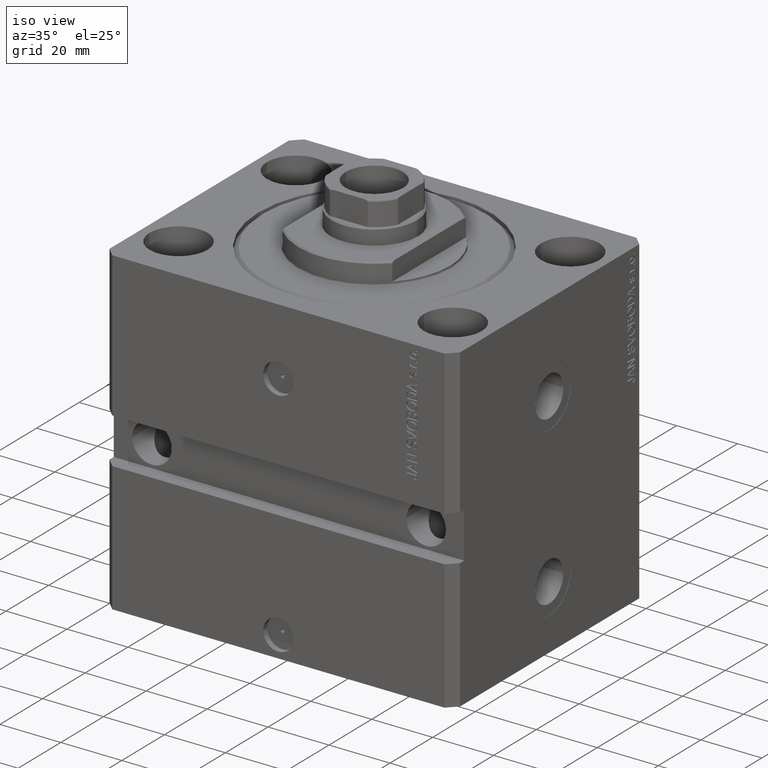
[diagram: clean part render]
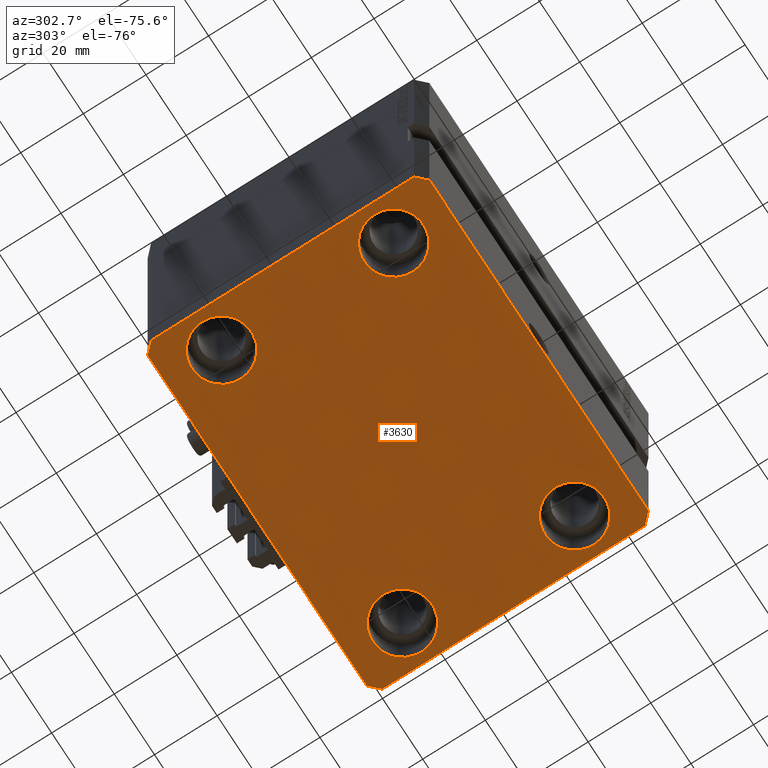
[diagram: tour spotlight — one face highlighted and labeled with its STEP entity id]
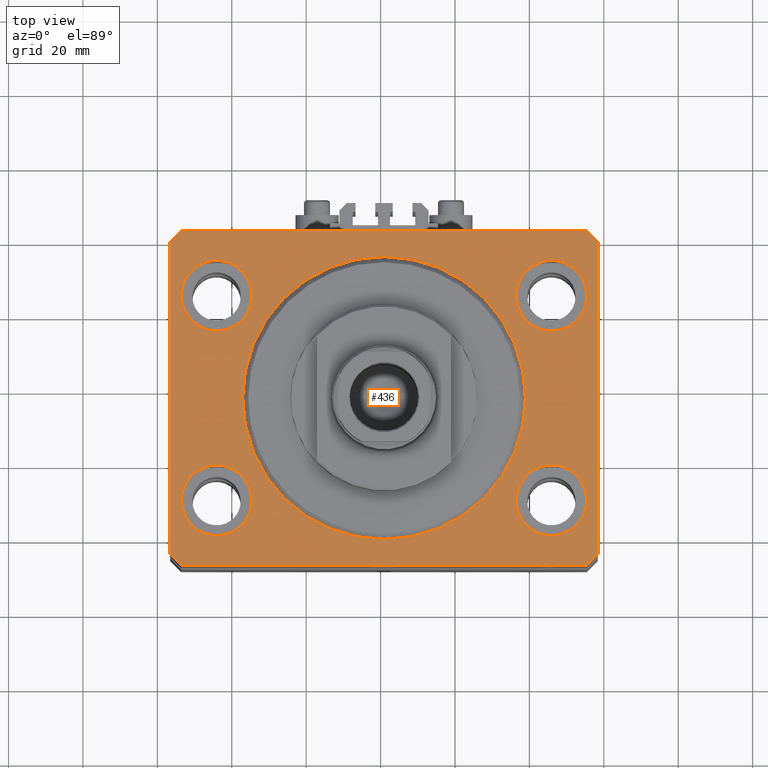
[diagram: tour spotlight — one face highlighted and labeled with its STEP entity id]
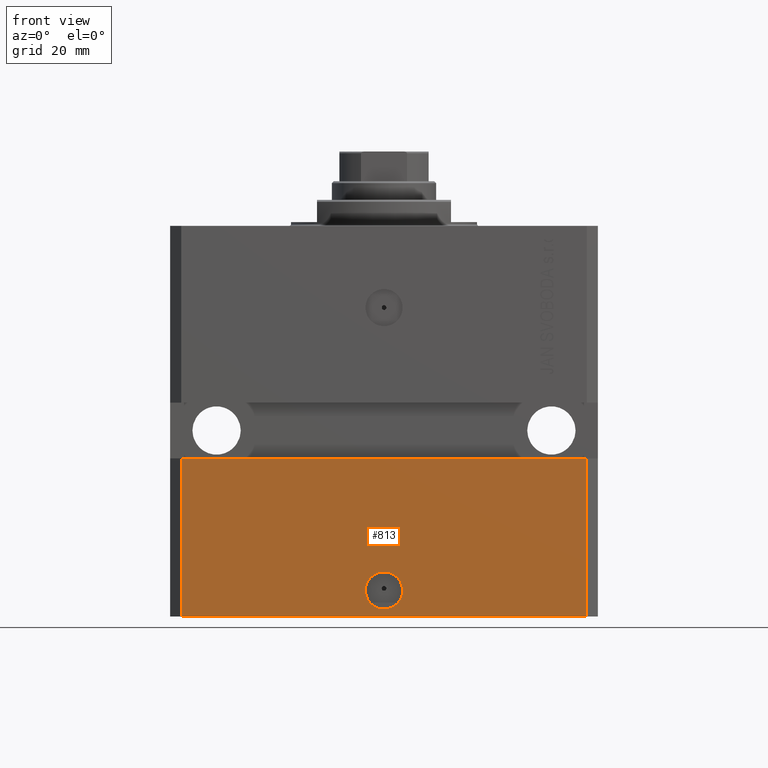
[diagram: tour spotlight — one face highlighted and labeled with its STEP entity id]
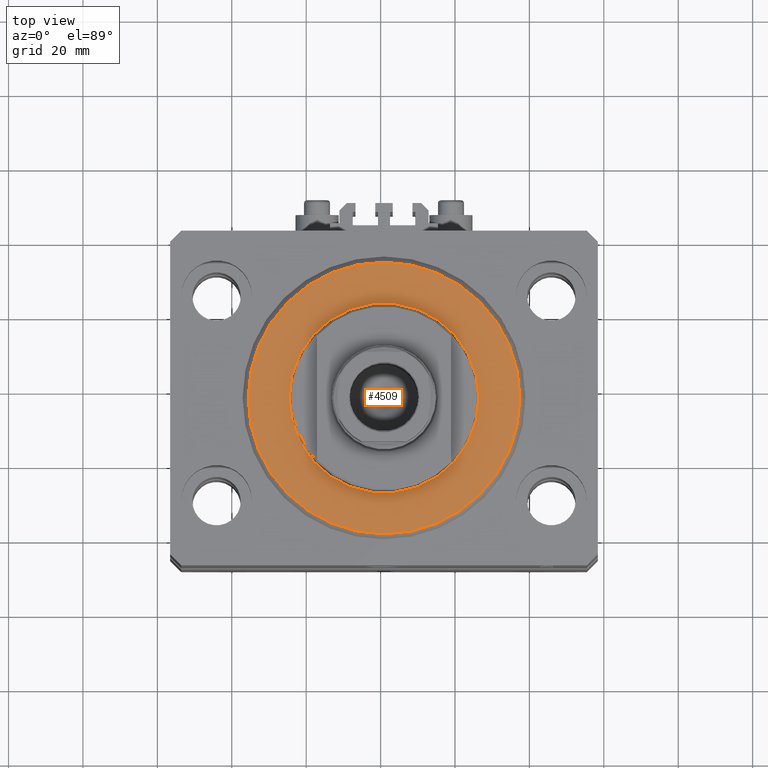
[diagram: tour spotlight — one face highlighted and labeled with its STEP entity id]
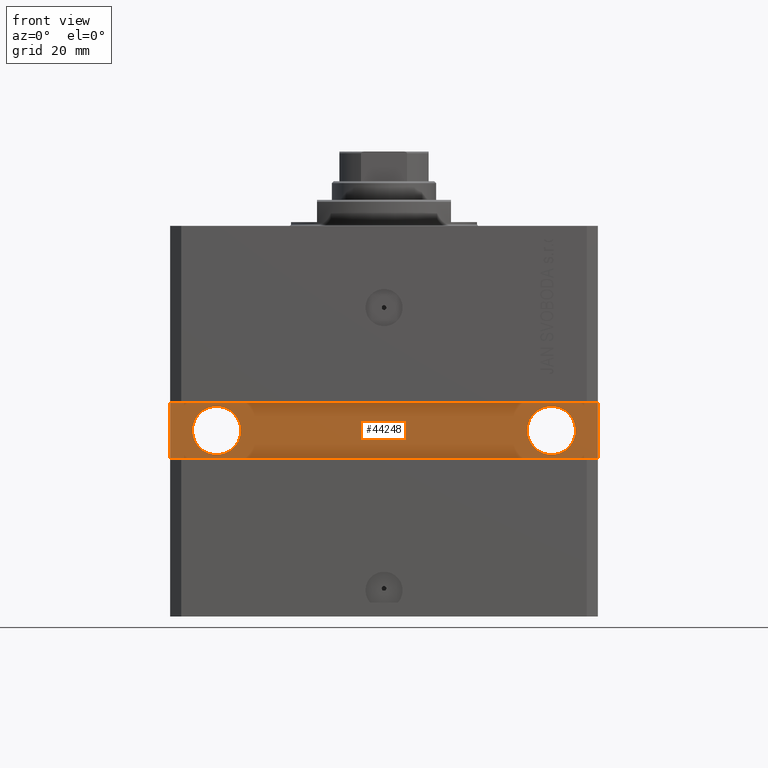
[diagram: tour spotlight — one face highlighted and labeled with its STEP entity id]
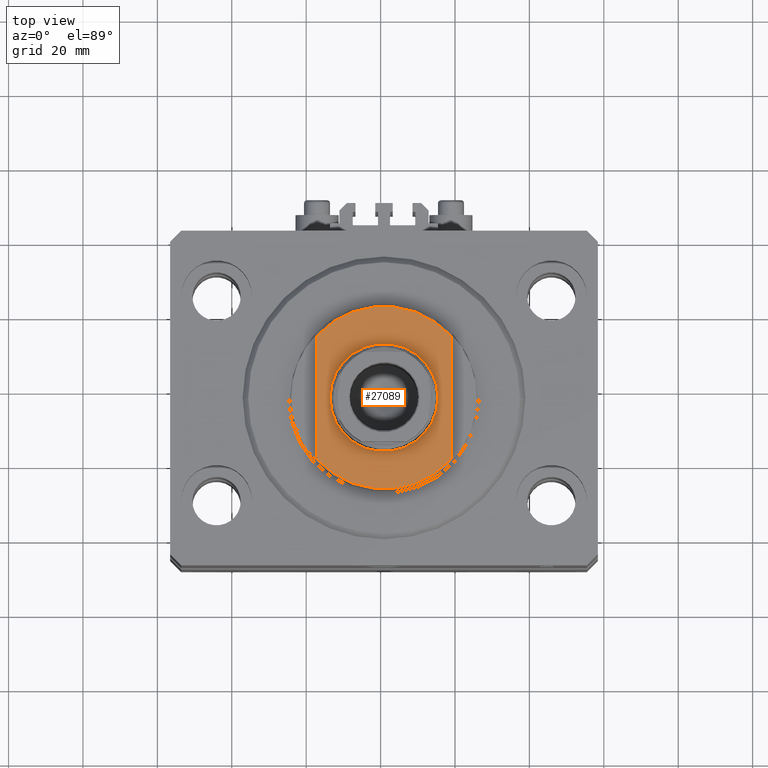
[diagram: tour spotlight — one face highlighted and labeled with its STEP entity id]
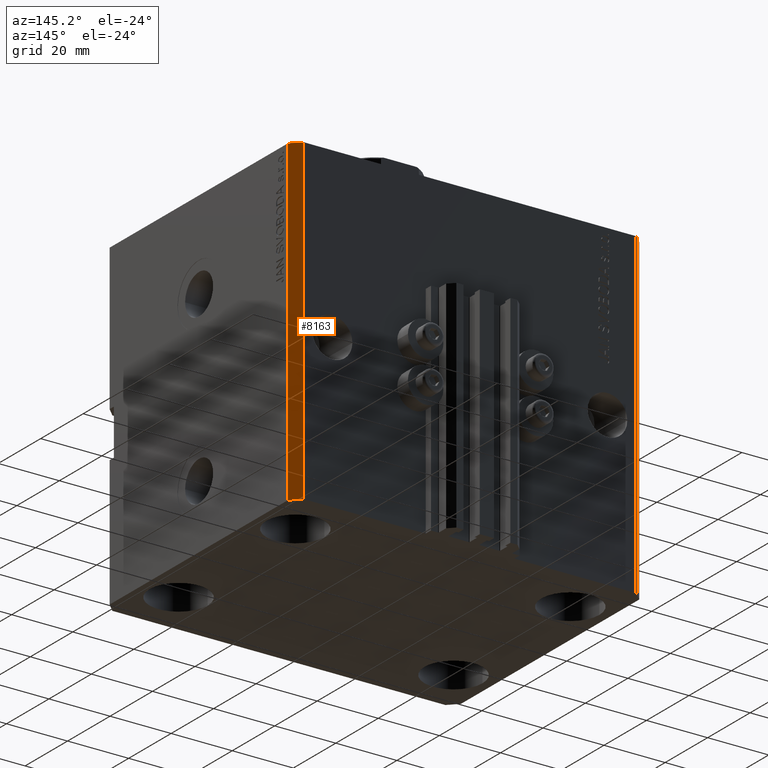
[diagram: tour spotlight — one face highlighted and labeled with its STEP entity id]
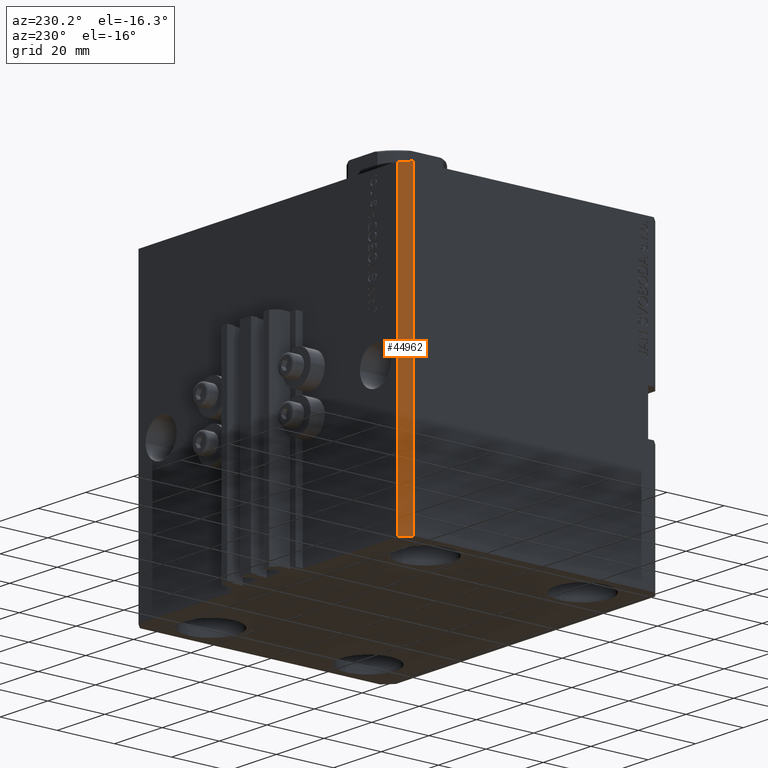
[diagram: tour spotlight — one face highlighted and labeled with its STEP entity id]
A machine part: a face-by-face anatomy tour. The part has 1107 B-rep faces; the first image is the clean iso view, then the 8 largest visible faces are spotlighted one at a time (largest first), each with its STEP entity span.

Face 1 — auxiliary view, entity #3630. In plain terms, the highlighted planar face has unit normal (0, 0, 1).
Definition (entity closure, byte-faithful):
#112 = DIRECTION ( 'NONE',  ( 6.443258625056715108E-15, 1.000000000000000000, 0.000000000000000000 ) ) ;
#125 = EDGE_CURVE ( 'NONE', #20394, #6511, #29089, .T. ) ;
#264 = CARTESIAN_POINT ( 'NONE',  ( 35.50000000000000000, -27.49999999999999645, -105.0000000000000000 ) ) ;
#377 = VERTEX_POINT ( 'NONE', #264 ) ;
#477 = VERTEX_POINT ( 'NONE', #28925 ) ;
#1305 = EDGE_CURVE ( 'NONE', #6511, #477, #19843, .T. ) ;
#3312 = LINE ( 'NONE', #3789, #21356 ) ;
#3402 = CARTESIAN_POINT ( 'NONE',  ( 57.50000000000055422, 41.99999999999997868, -105.0000000000000000 ) ) ;
#3582 = ORIENTED_EDGE ( 'NONE', *, *, #16244, .F. ) ;
#3630 = ADVANCED_FACE ( 'NONE', ( #8901, #38233, #11904, #34292, #19285 ), #31576, .F. ) ;
#3789 = CARTESIAN_POINT ( 'NONE',  ( 57.50000000000000711, -41.99999999999998579, -105.0000000000000000 ) ) ;
#4435 = AXIS2_PLACEMENT_3D ( 'NONE', #23701, #27870, #46571 ) ;
#4565 = EDGE_CURVE ( 'NONE', #40309, #38960, #5466, .T. ) ;
#4641 = ORIENTED_EDGE ( 'NONE', *, *, #9061, .T. ) ;
#4927 = DIRECTION ( 'NONE',  ( 1.000000000000000000, 0.000000000000000000, 0.000000000000000000 ) ) ;
#5466 = LINE ( 'NONE', #34777, #26491 ) ;
#5752 = DIRECTION ( 'NONE',  ( 1.000000000000000000, 1.273191542001326317E-16, 0.000000000000000000 ) ) ;
#6219 = VERTEX_POINT ( 'NONE', #42129 ) ;
#6511 = VERTEX_POINT ( 'NONE', #45877 ) ;
#6533 = ORIENTED_EDGE ( 'NONE', *, *, #19991, .T. ) ;
#6964 = VERTEX_POINT ( 'NONE', #22649 ) ;
#7187 = EDGE_CURVE ( 'NONE', #13862, #40309, #9052, .T. ) ;
#7370 = ORIENTED_EDGE ( 'NONE', *, *, #1305, .F. ) ;
#7487 = CARTESIAN_POINT ( 'NONE',  ( -54.49999999999999289, 45.00000000000000000, -105.0000000000000000 ) ) ;
#7887 = VECTOR ( 'NONE', #32775, 1000.000000000000000 ) ;
#8721 = CARTESIAN_POINT ( 'NONE',  ( -57.49999999999998579, 42.00000000000000711, -105.0000000000000000 ) ) ;
#8728 = CARTESIAN_POINT ( 'NONE',  ( 54.50000000000000711, -44.99999999999998579, -105.0000000000000000 ) ) ;
#8745 = DIRECTION ( 'NONE',  ( 0.7071067811865491270, -0.7071067811865459074, 0.000000000000000000 ) ) ;
#8901 = FACE_BOUND ( 'NONE', #27006, .T. ) ;
#9052 = LINE ( 'NONE', #20150, #26450 ) ;
#9054 = VERTEX_POINT ( 'NONE', #18397 ) ;
#9061 = EDGE_CURVE ( 'NONE', #9054, #40229, #27283, .T. ) ;
#9935 = CIRCLE ( 'NONE', #13096, 9.500000000000001776 ) ;
#9993 = ORIENTED_EDGE ( 'NONE', *, *, #22297, .T. ) ;
#10022 = CARTESIAN_POINT ( 'NONE',  ( -45.00000000000000000, 27.50000000000000355, -105.0000000000000000 ) ) ;
#10584 = EDGE_CURVE ( 'NONE', #38960, #20394, #26219, .T. ) ;
#10914 = DIRECTION ( 'NONE',  ( -0.000000000000000000, -0.000000000000000000, 1.000000000000000000 ) ) ;
#11194 = DIRECTION ( 'NONE',  ( -0.000000000000000000, -0.000000000000000000, 1.000000000000000000 ) ) ;
#11904 = FACE_BOUND ( 'NONE', #15045, .T. ) ;
#12507 = ORIENTED_EDGE ( 'NONE', *, *, #32824, .T. ) ;
#12941 = CARTESIAN_POINT ( 'NONE',  ( 45.00000000000000000, 27.50000000000001776, -105.0000000000000000 ) ) ;
#13096 = AXIS2_PLACEMENT_3D ( 'NONE', #19733, #16752, #4927 ) ;
#13113 = CARTESIAN_POINT ( 'NONE',  ( 45.00000000000000000, -27.49999999999999645, -105.0000000000000000 ) ) ;
#13542 = DIRECTION ( 'NONE',  ( -0.000000000000000000, -0.000000000000000000, 1.000000000000000000 ) ) ;
#13583 = CARTESIAN_POINT ( 'NONE',  ( -57.49999999999998579, 42.00000000000000711, -105.0000000000000000 ) ) ;
#13764 = ORIENTED_EDGE ( 'NONE', *, *, #10584, .F. ) ;
#13862 = VERTEX_POINT ( 'NONE', #3402 ) ;
#13943 = AXIS2_PLACEMENT_3D ( 'NONE', #10022, #25053, #36370 ) ;
#14221 = ORIENTED_EDGE ( 'NONE', *, *, #29487, .T. ) ;
#14630 = EDGE_CURVE ( 'NONE', #29879, #32594, #36915, .T. ) ;
#14688 = AXIS2_PLACEMENT_3D ( 'NONE', #25839, #13542, #40125 ) ;
#15045 = EDGE_LOOP ( 'NONE', ( #12507, #27717 ) ) ;
#15523 = CARTESIAN_POINT ( 'NONE',  ( 54.50000000000000000, 27.50000000000001776, -105.0000000000000000 ) ) ;
#16244 = EDGE_CURVE ( 'NONE', #43432, #6219, #30060, .T. ) ;
#16705 = DIRECTION ( 'NONE',  ( -0.7071067811865376918, 0.7071067811865574537, 0.000000000000000000 ) ) ;
#16752 = DIRECTION ( 'NONE',  ( -0.000000000000000000, -0.000000000000000000, 1.000000000000000000 ) ) ;
#16830 = VECTOR ( 'NONE', #5752, 1000.000000000000000 ) ;
#17192 = ORIENTED_EDGE ( 'NONE', *, *, #24057, .F. ) ;
#18129 = AXIS2_PLACEMENT_3D ( 'NONE', #18834, #11194, #18584 ) ;
#18397 = CARTESIAN_POINT ( 'NONE',  ( -54.50000000000000000, 27.50000000000000355, -105.0000000000000000 ) ) ;
#18584 = DIRECTION ( 'NONE',  ( 1.000000000000000000, 0.000000000000000000, 0.000000000000000000 ) ) ;
#18834 = CARTESIAN_POINT ( 'NONE',  ( 45.00000000000000000, -27.49999999999999645, -105.0000000000000000 ) ) ;
#19136 = EDGE_CURVE ( 'NONE', #6219, #13862, #3312, .T. ) ;
#19285 = FACE_OUTER_BOUND ( 'NONE', #45483, .T. ) ;
#19727 = CARTESIAN_POINT ( 'NONE',  ( -45.00000000000000000, -27.49999999999999645, -105.0000000000000000 ) ) ;
#19733 = CARTESIAN_POINT ( 'NONE',  ( 45.00000000000000000, 27.50000000000001776, -105.0000000000000000 ) ) ;
#19843 = LINE ( 'NONE', #27946, #24017 ) ;
#19913 = ORIENTED_EDGE ( 'NONE', *, *, #7187, .F. ) ;
#19991 = EDGE_CURVE ( 'NONE', #33998, #377, #39328, .T. ) ;
#20043 = LINE ( 'NONE', #31133, #16830 ) ;
#20150 = CARTESIAN_POINT ( 'NONE',  ( 57.50000000000055422, 41.99999999999997868, -105.0000000000000000 ) ) ;
#20394 = VERTEX_POINT ( 'NONE', #8721 ) ;
#20703 = CIRCLE ( 'NONE', #48232, 9.500000000000001776 ) ;
#21356 = VECTOR ( 'NONE', #112, 1000.000000000000000 ) ;
#21766 = CARTESIAN_POINT ( 'NONE',  ( -35.50000000000000000, -27.49999999999999645, -105.0000000000000000 ) ) ;
#22297 = EDGE_CURVE ( 'NONE', #42327, #6964, #20703, .T. ) ;
#22422 = CIRCLE ( 'NONE', #35758, 9.500000000000001776 ) ;
#22519 = DIRECTION ( 'NONE',  ( -0.7071067811865483499, -0.7071067811865466846, 0.000000000000000000 ) ) ;
#22649 = CARTESIAN_POINT ( 'NONE',  ( -54.50000000000000000, -27.49999999999999645, -105.0000000000000000 ) ) ;
#23131 = EDGE_LOOP ( 'NONE', ( #30900, #6533 ) ) ;
#23701 = CARTESIAN_POINT ( 'NONE',  ( 0.000000000000000000, 0.000000000000000000, -105.0000000000000000 ) ) ;
#24017 = VECTOR ( 'NONE', #8745, 1000.000000000000114 ) ;
#24057 = EDGE_CURVE ( 'NONE', #477, #43432, #20043, .T. ) ;
#24931 = DIRECTION ( 'NONE',  ( 1.000000000000000000, 0.000000000000000000, 0.000000000000000000 ) ) ;
#24963 = CARTESIAN_POINT ( 'NONE',  ( -45.00000000000000000, -27.49999999999999645, -105.0000000000000000 ) ) ;
#25053 = DIRECTION ( 'NONE',  ( -0.000000000000000000, -0.000000000000000000, 1.000000000000000000 ) ) ;
#25293 = EDGE_CURVE ( 'NONE', #377, #33998, #41923, .T. ) ;
#25839 = CARTESIAN_POINT ( 'NONE',  ( -45.00000000000000000, 27.50000000000000355, -105.0000000000000000 ) ) ;
#26219 = LINE ( 'NONE', #7487, #46961 ) ;
#26450 = VECTOR ( 'NONE', #16705, 999.9999999999998863 ) ;
#26491 = VECTOR ( 'NONE', #38241, 1000.000000000000000 ) ;
#27006 = EDGE_LOOP ( 'NONE', ( #14221, #9993 ) ) ;
#27283 = CIRCLE ( 'NONE', #13943, 9.500000000000001776 ) ;
#27717 = ORIENTED_EDGE ( 'NONE', *, *, #14630, .T. ) ;
#27736 = ORIENTED_EDGE ( 'NONE', *, *, #125, .F. ) ;
#27870 = DIRECTION ( 'NONE',  ( 0.000000000000000000, 0.000000000000000000, 1.000000000000000000 ) ) ;
#27946 = CARTESIAN_POINT ( 'NONE',  ( -57.50000000000000711, -42.00000000000000711, -105.0000000000000000 ) ) ;
#27955 = DIRECTION ( 'NONE',  ( -0.000000000000000000, -0.000000000000000000, 1.000000000000000000 ) ) ;
#28627 = DIRECTION ( 'NONE',  ( -0.000000000000000000, -0.000000000000000000, 1.000000000000000000 ) ) ;
#28925 = CARTESIAN_POINT ( 'NONE',  ( -54.50000000000000711, -45.00000000000000000, -105.0000000000000000 ) ) ;
#29089 = LINE ( 'NONE', #13583, #39697 ) ;
#29487 = EDGE_CURVE ( 'NONE', #6964, #42327, #22422, .T. ) ;
#29815 = CARTESIAN_POINT ( 'NONE',  ( 54.50000000000000711, -44.99999999999998579, -105.0000000000000000 ) ) ;
#29832 = AXIS2_PLACEMENT_3D ( 'NONE', #12941, #27955, #42969 ) ;
#29879 = VERTEX_POINT ( 'NONE', #15523 ) ;
#30060 = LINE ( 'NONE', #29815, #7887 ) ;
#30900 = ORIENTED_EDGE ( 'NONE', *, *, #25293, .T. ) ;
#30978 = CARTESIAN_POINT ( 'NONE',  ( -54.49999999999999289, 45.00000000000000000, -105.0000000000000000 ) ) ;
#31133 = CARTESIAN_POINT ( 'NONE',  ( -54.50000000000000711, -45.00000000000000000, -105.0000000000000000 ) ) ;
#31155 = CARTESIAN_POINT ( 'NONE',  ( 54.50000000000000000, -27.49999999999999645, -105.0000000000000000 ) ) ;
#31576 = PLANE ( 'NONE',  #4435 ) ;
#32307 = DIRECTION ( 'NONE',  ( -2.478176394252581141E-16, -1.000000000000000000, 0.000000000000000000 ) ) ;
#32375 = ORIENTED_EDGE ( 'NONE', *, *, #4565, .F. ) ;
#32594 = VERTEX_POINT ( 'NONE', #40203 ) ;
#32775 = DIRECTION ( 'NONE',  ( 0.7071067811865483499, 0.7071067811865466846, 0.000000000000000000 ) ) ;
#32824 = EDGE_CURVE ( 'NONE', #32594, #29879, #9935, .T. ) ;
#32966 = EDGE_LOOP ( 'NONE', ( #4641, #47920 ) ) ;
#33487 = EDGE_CURVE ( 'NONE', #40229, #9054, #35118, .T. ) ;
#33998 = VERTEX_POINT ( 'NONE', #31155 ) ;
#34292 = FACE_BOUND ( 'NONE', #32966, .T. ) ;
#34377 = CARTESIAN_POINT ( 'NONE',  ( -35.50000000000000000, 27.50000000000000355, -105.0000000000000000 ) ) ;
#34777 = CARTESIAN_POINT ( 'NONE',  ( 54.50000000000058975, 45.00000000000002842, -105.0000000000000000 ) ) ;
#35118 = CIRCLE ( 'NONE', #14688, 9.500000000000001776 ) ;
#35758 = AXIS2_PLACEMENT_3D ( 'NONE', #24963, #10914, #36525 ) ;
#36370 = DIRECTION ( 'NONE',  ( 1.000000000000000000, 0.000000000000000000, 0.000000000000000000 ) ) ;
#36525 = DIRECTION ( 'NONE',  ( 1.000000000000000000, 0.000000000000000000, 0.000000000000000000 ) ) ;
#36915 = CIRCLE ( 'NONE', #29832, 9.500000000000001776 ) ;
#38233 = FACE_BOUND ( 'NONE', #23131, .T. ) ;
#38241 = DIRECTION ( 'NONE',  ( -1.000000000000000000, -2.546383084002639322E-16, 0.000000000000000000 ) ) ;
#38432 = DIRECTION ( 'NONE',  ( 1.000000000000000000, 0.000000000000000000, 0.000000000000000000 ) ) ;
#38780 = AXIS2_PLACEMENT_3D ( 'NONE', #13113, #28627, #24931 ) ;
#38960 = VERTEX_POINT ( 'NONE', #30978 ) ;
#39328 = CIRCLE ( 'NONE', #18129, 9.500000000000001776 ) ;
#39697 = VECTOR ( 'NONE', #32307, 1000.000000000000000 ) ;
#40125 = DIRECTION ( 'NONE',  ( 1.000000000000000000, 0.000000000000000000, 0.000000000000000000 ) ) ;
#40203 = CARTESIAN_POINT ( 'NONE',  ( 35.50000000000000000, 27.50000000000001776, -105.0000000000000000 ) ) ;
#40229 = VERTEX_POINT ( 'NONE', #34377 ) ;
#40309 = VERTEX_POINT ( 'NONE', #46415 ) ;
#41158 = DIRECTION ( 'NONE',  ( -0.000000000000000000, -0.000000000000000000, 1.000000000000000000 ) ) ;
#41923 = CIRCLE ( 'NONE', #38780, 9.500000000000001776 ) ;
#42046 = ORIENTED_EDGE ( 'NONE', *, *, #19136, .F. ) ;
#42129 = CARTESIAN_POINT ( 'NONE',  ( 57.50000000000000711, -41.99999999999998579, -105.0000000000000000 ) ) ;
#42327 = VERTEX_POINT ( 'NONE', #21766 ) ;
#42969 = DIRECTION ( 'NONE',  ( 1.000000000000000000, 0.000000000000000000, 0.000000000000000000 ) ) ;
#43432 = VERTEX_POINT ( 'NONE', #8728 ) ;
#45483 = EDGE_LOOP ( 'NONE', ( #32375, #19913, #42046, #3582, #17192, #7370, #27736, #13764 ) ) ;
#45877 = CARTESIAN_POINT ( 'NONE',  ( -57.50000000000000711, -42.00000000000000711, -105.0000000000000000 ) ) ;
#46415 = CARTESIAN_POINT ( 'NONE',  ( 54.50000000000058975, 45.00000000000002842, -105.0000000000000000 ) ) ;
#46571 = DIRECTION ( 'NONE',  ( 1.000000000000000000, 0.000000000000000000, -0.000000000000000000 ) ) ;
#46961 = VECTOR ( 'NONE', #22519, 1000.000000000000000 ) ;
#47920 = ORIENTED_EDGE ( 'NONE', *, *, #33487, .T. ) ;
#48232 = AXIS2_PLACEMENT_3D ( 'NONE', #19727, #41158, #38432 ) ;

Face 2 — top view, entity #436. In plain terms, the highlighted planar face has unit normal (0, 0, 1).
Definition (entity closure, byte-faithful):
#436 = ADVANCED_FACE ( 'NONE', ( #16908, #31926, #46934, #13215, #21060, #39264 ), #2083, .T. ) ;
#547 = AXIS2_PLACEMENT_3D ( 'NONE', #9775, #43759, #24801 ) ;
#1015 = DIRECTION ( 'NONE',  ( 0.000000000000000000, 0.000000000000000000, 1.000000000000000000 ) ) ;
#2036 = CARTESIAN_POINT ( 'NONE',  ( 45.00000000000000000, 27.50000000000001776, 0.000000000000000000 ) ) ;
#2056 = LINE ( 'NONE', #20283, #18493 ) ;
#2083 = PLANE ( 'NONE',  #7462 ) ;
#2191 = EDGE_CURVE ( 'NONE', #17989, #13454, #47640, .T. ) ;
#2441 = VERTEX_POINT ( 'NONE', #7311 ) ;
#2590 = AXIS2_PLACEMENT_3D ( 'NONE', #46104, #37586, #27166 ) ;
#3019 = DIRECTION ( 'NONE',  ( -0.7071067811865483499, -0.7071067811865466846, 0.000000000000000000 ) ) ;
#3336 = EDGE_CURVE ( 'NONE', #3861, #16963, #21624, .T. ) ;
#3755 = DIRECTION ( 'NONE',  ( 1.000000000000000000, 1.273191542001326317E-16, 0.000000000000000000 ) ) ;
#3861 = VERTEX_POINT ( 'NONE', #18021 ) ;
#4135 = CARTESIAN_POINT ( 'NONE',  ( -45.00000000000000000, 27.50000000000000355, 0.000000000000000000 ) ) ;
#5019 = CARTESIAN_POINT ( 'NONE',  ( -57.50000000000000711, -42.00000000000000711, 0.000000000000000000 ) ) ;
#5020 = DIRECTION ( 'NONE',  ( -2.478176394252581141E-16, -1.000000000000000000, 0.000000000000000000 ) ) ;
#5124 = ORIENTED_EDGE ( 'NONE', *, *, #6803, .F. ) ;
#5341 = CIRCLE ( 'NONE', #32898, 9.500000000000001776 ) ;
#6254 = DIRECTION ( 'NONE',  ( 1.000000000000000000, 0.000000000000000000, 0.000000000000000000 ) ) ;
#6385 = CARTESIAN_POINT ( 'NONE',  ( -57.49999999999998579, 42.00000000000000711, 0.000000000000000000 ) ) ;
#6563 = EDGE_CURVE ( 'NONE', #2441, #19921, #30358, .T. ) ;
#6621 = EDGE_CURVE ( 'NONE', #45071, #18399, #25675, .T. ) ;
#6803 = EDGE_CURVE ( 'NONE', #13499, #31987, #24868, .T. ) ;
#6884 = DIRECTION ( 'NONE',  ( 0.000000000000000000, 0.000000000000000000, 1.000000000000000000 ) ) ;
#7164 = CARTESIAN_POINT ( 'NONE',  ( 57.50000000000055422, 41.99999999999997868, 0.000000000000000000 ) ) ;
#7311 = CARTESIAN_POINT ( 'NONE',  ( 35.50000000000000000, 27.50000000000001776, 0.000000000000000000 ) ) ;
#7344 = DIRECTION ( 'NONE',  ( 1.000000000000000000, 0.000000000000000000, 0.000000000000000000 ) ) ;
#7462 = AXIS2_PLACEMENT_3D ( 'NONE', #13903, #35560, #9713 ) ;
#7640 = CARTESIAN_POINT ( 'NONE',  ( -38.00000000000000000, 4.653657836759941941E-15, 0.000000000000000000 ) ) ;
#7963 = CARTESIAN_POINT ( 'NONE',  ( 54.50000000000058975, 45.00000000000002842, 0.000000000000000000 ) ) ;
#8052 = ORIENTED_EDGE ( 'NONE', *, *, #29403, .T. ) ;
#8179 = CARTESIAN_POINT ( 'NONE',  ( -54.50000000000000711, -45.00000000000000000, 0.000000000000000000 ) ) ;
#8870 = EDGE_LOOP ( 'NONE', ( #28527, #12181 ) ) ;
#8937 = EDGE_CURVE ( 'NONE', #46738, #9719, #17884, .T. ) ;
#9095 = VECTOR ( 'NONE', #3019, 1000.000000000000000 ) ;
#9713 = DIRECTION ( 'NONE',  ( 1.000000000000000000, 0.000000000000000000, -0.000000000000000000 ) ) ;
#9719 = VERTEX_POINT ( 'NONE', #31226 ) ;
#9775 = CARTESIAN_POINT ( 'NONE',  ( -45.00000000000000000, -27.49999999999999645, 0.000000000000000000 ) ) ;
#10457 = CARTESIAN_POINT ( 'NONE',  ( 54.50000000000000000, 27.50000000000001776, 0.000000000000000000 ) ) ;
#11553 = AXIS2_PLACEMENT_3D ( 'NONE', #4135, #37637, #7344 ) ;
#11893 = DIRECTION ( 'NONE',  ( 0.000000000000000000, 0.000000000000000000, 1.000000000000000000 ) ) ;
#11906 = CARTESIAN_POINT ( 'NONE',  ( 35.50000000000000000, -27.49999999999999645, 0.000000000000000000 ) ) ;
#12033 = DIRECTION ( 'NONE',  ( 0.7071067811865483499, 0.7071067811865466846, 0.000000000000000000 ) ) ;
#12181 = ORIENTED_EDGE ( 'NONE', *, *, #33742, .F. ) ;
#12256 = ORIENTED_EDGE ( 'NONE', *, *, #2191, .F. ) ;
#12322 = VERTEX_POINT ( 'NONE', #12658 ) ;
#12553 = EDGE_CURVE ( 'NONE', #16963, #29981, #22474, .T. ) ;
#12587 = CARTESIAN_POINT ( 'NONE',  ( 0.000000000000000000, 0.000000000000000000, 0.000000000000000000 ) ) ;
#12624 = CIRCLE ( 'NONE', #36221, 9.500000000000001776 ) ;
#12658 = CARTESIAN_POINT ( 'NONE',  ( 57.50000000000055422, 41.99999999999997868, 0.000000000000000000 ) ) ;
#12662 = DIRECTION ( 'NONE',  ( 6.443258625056715108E-15, 1.000000000000000000, 0.000000000000000000 ) ) ;
#12789 = VERTEX_POINT ( 'NONE', #18253 ) ;
#13202 = EDGE_LOOP ( 'NONE', ( #23273, #12256 ) ) ;
#13215 = FACE_BOUND ( 'NONE', #8870, .T. ) ;
#13454 = VERTEX_POINT ( 'NONE', #28844 ) ;
#13499 = VERTEX_POINT ( 'NONE', #7640 ) ;
#13869 = AXIS2_PLACEMENT_3D ( 'NONE', #12587, #1015, #42852 ) ;
#13874 = VECTOR ( 'NONE', #20299, 1000.000000000000114 ) ;
#13903 = CARTESIAN_POINT ( 'NONE',  ( 0.000000000000000000, 0.000000000000000000, 0.000000000000000000 ) ) ;
#14269 = ORIENTED_EDGE ( 'NONE', *, *, #3336, .T. ) ;
#14557 = DIRECTION ( 'NONE',  ( 1.000000000000000000, 0.000000000000000000, 0.000000000000000000 ) ) ;
#15833 = DIRECTION ( 'NONE',  ( 1.000000000000000000, 0.000000000000000000, 0.000000000000000000 ) ) ;
#16082 = CARTESIAN_POINT ( 'NONE',  ( -35.50000000000000000, -27.49999999999999645, 0.000000000000000000 ) ) ;
#16199 = VERTEX_POINT ( 'NONE', #25879 ) ;
#16908 = FACE_BOUND ( 'NONE', #36403, .T. ) ;
#16932 = VECTOR ( 'NONE', #36970, 999.9999999999998863 ) ;
#16961 = EDGE_CURVE ( 'NONE', #19921, #2441, #12624, .T. ) ;
#16963 = VERTEX_POINT ( 'NONE', #8179 ) ;
#17040 = VECTOR ( 'NONE', #12033, 1000.000000000000000 ) ;
#17884 = CIRCLE ( 'NONE', #547, 9.500000000000001776 ) ;
#17981 = DIRECTION ( 'NONE',  ( 1.000000000000000000, 0.000000000000000000, 0.000000000000000000 ) ) ;
#17989 = VERTEX_POINT ( 'NONE', #11906 ) ;
#18021 = CARTESIAN_POINT ( 'NONE',  ( -57.50000000000000711, -42.00000000000000711, 0.000000000000000000 ) ) ;
#18253 = CARTESIAN_POINT ( 'NONE',  ( 54.50000000000058975, 45.00000000000002842, 0.000000000000000000 ) ) ;
#18399 = VERTEX_POINT ( 'NONE', #6385 ) ;
#18493 = VECTOR ( 'NONE', #12662, 1000.000000000000000 ) ;
#19921 = VERTEX_POINT ( 'NONE', #10457 ) ;
#20283 = CARTESIAN_POINT ( 'NONE',  ( 57.50000000000000711, -41.99999999999998579, 0.000000000000000000 ) ) ;
#20299 = DIRECTION ( 'NONE',  ( 0.7071067811865491270, -0.7071067811865459074, 0.000000000000000000 ) ) ;
#20547 = ORIENTED_EDGE ( 'NONE', *, *, #44888, .T. ) ;
#21060 = FACE_BOUND ( 'NONE', #38320, .T. ) ;
#21624 = LINE ( 'NONE', #5019, #13874 ) ;
#22474 = LINE ( 'NONE', #37492, #45493 ) ;
#23273 = ORIENTED_EDGE ( 'NONE', *, *, #37597, .F. ) ;
#23307 = ORIENTED_EDGE ( 'NONE', *, *, #25205, .F. ) ;
#23408 = CARTESIAN_POINT ( 'NONE',  ( -54.49999999999999289, 45.00000000000000000, 0.000000000000000000 ) ) ;
#23539 = AXIS2_PLACEMENT_3D ( 'NONE', #43452, #39999, #6254 ) ;
#23762 = LINE ( 'NONE', #38764, #40941 ) ;
#23822 = CIRCLE ( 'NONE', #2590, 38.00000000000000000 ) ;
#24801 = DIRECTION ( 'NONE',  ( 1.000000000000000000, 0.000000000000000000, 0.000000000000000000 ) ) ;
#24868 = CIRCLE ( 'NONE', #13869, 38.00000000000000000 ) ;
#24905 = CARTESIAN_POINT ( 'NONE',  ( -45.00000000000000000, -27.49999999999999645, 0.000000000000000000 ) ) ;
#25205 = EDGE_CURVE ( 'NONE', #31987, #13499, #23822, .T. ) ;
#25675 = LINE ( 'NONE', #47587, #9095 ) ;
#25879 = CARTESIAN_POINT ( 'NONE',  ( -54.50000000000000000, 27.50000000000000355, 0.000000000000000000 ) ) ;
#25900 = CIRCLE ( 'NONE', #23539, 9.500000000000001776 ) ;
#27166 = DIRECTION ( 'NONE',  ( 1.000000000000000000, 0.000000000000000000, 0.000000000000000000 ) ) ;
#27272 = EDGE_LOOP ( 'NONE', ( #46744, #41488, #20547, #14269, #46265, #42263, #8052, #36886 ) ) ;
#27468 = ORIENTED_EDGE ( 'NONE', *, *, #16961, .F. ) ;
#28171 = CIRCLE ( 'NONE', #32154, 9.500000000000001776 ) ;
#28527 = ORIENTED_EDGE ( 'NONE', *, *, #43572, .F. ) ;
#28844 = CARTESIAN_POINT ( 'NONE',  ( 54.50000000000000000, -27.49999999999999645, 0.000000000000000000 ) ) ;
#29342 = LINE ( 'NONE', #7164, #16932 ) ;
#29403 = EDGE_CURVE ( 'NONE', #41244, #12322, #2056, .T. ) ;
#29981 = VERTEX_POINT ( 'NONE', #42576 ) ;
#30358 = CIRCLE ( 'NONE', #35072, 9.500000000000001776 ) ;
#30362 = AXIS2_PLACEMENT_3D ( 'NONE', #40621, #6884, #17981 ) ;
#30896 = EDGE_CURVE ( 'NONE', #12322, #12789, #29342, .T. ) ;
#31226 = CARTESIAN_POINT ( 'NONE',  ( -54.50000000000000000, -27.49999999999999645, 0.000000000000000000 ) ) ;
#31406 = EDGE_CURVE ( 'NONE', #12789, #45071, #38002, .T. ) ;
#31421 = VERTEX_POINT ( 'NONE', #48609 ) ;
#31926 = FACE_BOUND ( 'NONE', #13202, .T. ) ;
#31987 = VERTEX_POINT ( 'NONE', #47271 ) ;
#32118 = CARTESIAN_POINT ( 'NONE',  ( 57.50000000000000711, -41.99999999999998579, 0.000000000000000000 ) ) ;
#32154 = AXIS2_PLACEMENT_3D ( 'NONE', #24905, #41621, #14557 ) ;
#32481 = DIRECTION ( 'NONE',  ( 1.000000000000000000, 0.000000000000000000, 0.000000000000000000 ) ) ;
#32898 = AXIS2_PLACEMENT_3D ( 'NONE', #35421, #47726, #32481 ) ;
#33742 = EDGE_CURVE ( 'NONE', #16199, #31421, #46895, .T. ) ;
#34061 = DIRECTION ( 'NONE',  ( -1.000000000000000000, -2.546383084002639322E-16, 0.000000000000000000 ) ) ;
#34182 = LINE ( 'NONE', #37890, #17040 ) ;
#34422 = EDGE_CURVE ( 'NONE', #29981, #41244, #34182, .T. ) ;
#34791 = DIRECTION ( 'NONE',  ( 1.000000000000000000, 0.000000000000000000, 0.000000000000000000 ) ) ;
#35072 = AXIS2_PLACEMENT_3D ( 'NONE', #2036, #46356, #34791 ) ;
#35421 = CARTESIAN_POINT ( 'NONE',  ( 45.00000000000000000, -27.49999999999999645, 0.000000000000000000 ) ) ;
#35560 = DIRECTION ( 'NONE',  ( 0.000000000000000000, 0.000000000000000000, 1.000000000000000000 ) ) ;
#36153 = EDGE_LOOP ( 'NONE', ( #27468, #48722 ) ) ;
#36221 = AXIS2_PLACEMENT_3D ( 'NONE', #45608, #11893, #15833 ) ;
#36403 = EDGE_LOOP ( 'NONE', ( #43270, #40037 ) ) ;
#36886 = ORIENTED_EDGE ( 'NONE', *, *, #30896, .T. ) ;
#36970 = DIRECTION ( 'NONE',  ( -0.7071067811865376918, 0.7071067811865574537, 0.000000000000000000 ) ) ;
#37492 = CARTESIAN_POINT ( 'NONE',  ( -54.50000000000000711, -45.00000000000000000, 0.000000000000000000 ) ) ;
#37586 = DIRECTION ( 'NONE',  ( 0.000000000000000000, 0.000000000000000000, 1.000000000000000000 ) ) ;
#37597 = EDGE_CURVE ( 'NONE', #13454, #17989, #5341, .T. ) ;
#37637 = DIRECTION ( 'NONE',  ( 0.000000000000000000, 0.000000000000000000, 1.000000000000000000 ) ) ;
#37890 = CARTESIAN_POINT ( 'NONE',  ( 54.50000000000000711, -44.99999999999998579, 0.000000000000000000 ) ) ;
#38002 = LINE ( 'NONE', #7963, #39776 ) ;
#38320 = EDGE_LOOP ( 'NONE', ( #23307, #5124 ) ) ;
#38764 = CARTESIAN_POINT ( 'NONE',  ( -57.49999999999998579, 42.00000000000000711, 0.000000000000000000 ) ) ;
#39264 = FACE_OUTER_BOUND ( 'NONE', #27272, .T. ) ;
#39776 = VECTOR ( 'NONE', #34061, 1000.000000000000000 ) ;
#39999 = DIRECTION ( 'NONE',  ( 0.000000000000000000, 0.000000000000000000, 1.000000000000000000 ) ) ;
#40037 = ORIENTED_EDGE ( 'NONE', *, *, #41784, .F. ) ;
#40621 = CARTESIAN_POINT ( 'NONE',  ( 45.00000000000000000, -27.49999999999999645, 0.000000000000000000 ) ) ;
#40941 = VECTOR ( 'NONE', #5020, 1000.000000000000000 ) ;
#41244 = VERTEX_POINT ( 'NONE', #32118 ) ;
#41488 = ORIENTED_EDGE ( 'NONE', *, *, #6621, .T. ) ;
#41621 = DIRECTION ( 'NONE',  ( 0.000000000000000000, 0.000000000000000000, 1.000000000000000000 ) ) ;
#41784 = EDGE_CURVE ( 'NONE', #9719, #46738, #28171, .T. ) ;
#42263 = ORIENTED_EDGE ( 'NONE', *, *, #34422, .T. ) ;
#42576 = CARTESIAN_POINT ( 'NONE',  ( 54.50000000000000711, -44.99999999999998579, 0.000000000000000000 ) ) ;
#42852 = DIRECTION ( 'NONE',  ( 1.000000000000000000, 0.000000000000000000, 0.000000000000000000 ) ) ;
#43270 = ORIENTED_EDGE ( 'NONE', *, *, #8937, .F. ) ;
#43452 = CARTESIAN_POINT ( 'NONE',  ( -45.00000000000000000, 27.50000000000000355, 0.000000000000000000 ) ) ;
#43572 = EDGE_CURVE ( 'NONE', #31421, #16199, #25900, .T. ) ;
#43759 = DIRECTION ( 'NONE',  ( 0.000000000000000000, 0.000000000000000000, 1.000000000000000000 ) ) ;
#44888 = EDGE_CURVE ( 'NONE', #18399, #3861, #23762, .T. ) ;
#45071 = VERTEX_POINT ( 'NONE', #23408 ) ;
#45493 = VECTOR ( 'NONE', #3755, 1000.000000000000000 ) ;
#45608 = CARTESIAN_POINT ( 'NONE',  ( 45.00000000000000000, 27.50000000000001776, 0.000000000000000000 ) ) ;
#46104 = CARTESIAN_POINT ( 'NONE',  ( 0.000000000000000000, 0.000000000000000000, 0.000000000000000000 ) ) ;
#46265 = ORIENTED_EDGE ( 'NONE', *, *, #12553, .T. ) ;
#46356 = DIRECTION ( 'NONE',  ( 0.000000000000000000, 0.000000000000000000, 1.000000000000000000 ) ) ;
#46738 = VERTEX_POINT ( 'NONE', #16082 ) ;
#46744 = ORIENTED_EDGE ( 'NONE', *, *, #31406, .T. ) ;
#46895 = CIRCLE ( 'NONE', #11553, 9.500000000000001776 ) ;
#46934 = FACE_BOUND ( 'NONE', #36153, .T. ) ;
#47271 = CARTESIAN_POINT ( 'NONE',  ( 38.00000000000000000, 0.000000000000000000, 0.000000000000000000 ) ) ;
#47587 = CARTESIAN_POINT ( 'NONE',  ( -54.49999999999999289, 45.00000000000000000, 0.000000000000000000 ) ) ;
#47640 = CIRCLE ( 'NONE', #30362, 9.500000000000001776 ) ;
#47726 = DIRECTION ( 'NONE',  ( 0.000000000000000000, 0.000000000000000000, 1.000000000000000000 ) ) ;
#48609 = CARTESIAN_POINT ( 'NONE',  ( -35.50000000000000000, 27.50000000000000355, 0.000000000000000000 ) ) ;
#48722 = ORIENTED_EDGE ( 'NONE', *, *, #6563, .F. ) ;

Face 3 — front view, entity #813. In plain terms, the highlighted planar face has unit normal (0, -1, 0).
Definition (entity closure, byte-faithful):
#155 = DIRECTION ( 'NONE',  ( 1.000000000000000000, 0.000000000000000000, 0.000000000000000000 ) ) ;
#477 = VERTEX_POINT ( 'NONE', #28925 ) ;
#813 = ADVANCED_FACE ( 'NONE', ( #23943, #16320 ), #5213, .T. ) ;
#981 = LINE ( 'NONE', #23153, #40014 ) ;
#3273 = ORIENTED_EDGE ( 'NONE', *, *, #23065, .T. ) ;
#4169 = AXIS2_PLACEMENT_3D ( 'NONE', #7768, #22553, #155 ) ;
#4830 = DIRECTION ( 'NONE',  ( 0.000000000000000000, 0.000000000000000000, 1.000000000000000000 ) ) ;
#5213 = PLANE ( 'NONE',  #46016 ) ;
#5752 = DIRECTION ( 'NONE',  ( 1.000000000000000000, 1.273191542001326317E-16, 0.000000000000000000 ) ) ;
#6169 = LINE ( 'NONE', #21210, #23055 ) ;
#6252 = EDGE_CURVE ( 'NONE', #29319, #10915, #13831, .T. ) ;
#7768 = CARTESIAN_POINT ( 'NONE',  ( 5.729361939005967538E-15, -44.99999999999999289, -97.99999999999998579 ) ) ;
#8098 = VERTEX_POINT ( 'NONE', #35172 ) ;
#8437 = CARTESIAN_POINT ( 'NONE',  ( -54.50000000000000711, -45.00000000000000000, -105.0000000000000000 ) ) ;
#8728 = CARTESIAN_POINT ( 'NONE',  ( 54.50000000000000711, -44.99999999999998579, -105.0000000000000000 ) ) ;
#9165 = CARTESIAN_POINT ( 'NONE',  ( -54.50000000000000711, -45.00000000000000000, -62.50000000000000000 ) ) ;
#9498 = CARTESIAN_POINT ( 'NONE',  ( 54.50000000000000711, -44.99999999999998579, -105.0000000000000000 ) ) ;
#9865 = DIRECTION ( 'NONE',  ( 0.000000000000000000, 0.000000000000000000, 1.000000000000000000 ) ) ;
#10652 = VERTEX_POINT ( 'NONE', #9165 ) ;
#10915 = VERTEX_POINT ( 'NONE', #18785 ) ;
#11317 = VECTOR ( 'NONE', #4830, 1000.000000000000000 ) ;
#13535 = EDGE_CURVE ( 'NONE', #10652, #8098, #981, .T. ) ;
#13557 = CARTESIAN_POINT ( 'NONE',  ( 5.729361939005967538E-15, -44.99999999999999289, -97.99999999999998579 ) ) ;
#13831 = CIRCLE ( 'NONE', #41348, 5.000000000000006217 ) ;
#16320 = FACE_OUTER_BOUND ( 'NONE', #43381, .T. ) ;
#16830 = VECTOR ( 'NONE', #5752, 1000.000000000000000 ) ;
#18785 = CARTESIAN_POINT ( 'NONE',  ( 5.000000000000012434, -44.99999999999999289, -97.99999999999998579 ) ) ;
#20043 = LINE ( 'NONE', #31133, #16830 ) ;
#21210 = CARTESIAN_POINT ( 'NONE',  ( -54.50000000000000711, -45.00000000000000000, -105.0000000000000000 ) ) ;
#22553 = DIRECTION ( 'NONE',  ( 1.176083712526788232E-16, -1.000000000000000000, 0.000000000000000000 ) ) ;
#23055 = VECTOR ( 'NONE', #9865, 1000.000000000000000 ) ;
#23065 = EDGE_CURVE ( 'NONE', #43432, #8098, #31430, .T. ) ;
#23153 = CARTESIAN_POINT ( 'NONE',  ( -57.50000000000000711, -45.00000000000000000, -62.50000000000000000 ) ) ;
#23870 = DIRECTION ( 'NONE',  ( 1.000000000000000000, 1.206764157201257045E-16, 0.000000000000000000 ) ) ;
#23943 = FACE_BOUND ( 'NONE', #38384, .T. ) ;
#24057 = EDGE_CURVE ( 'NONE', #477, #43432, #20043, .T. ) ;
#24208 = ORIENTED_EDGE ( 'NONE', *, *, #24057, .T. ) ;
#24757 = EDGE_CURVE ( 'NONE', #10915, #29319, #46616, .T. ) ;
#25121 = EDGE_CURVE ( 'NONE', #477, #10652, #6169, .T. ) ;
#28925 = CARTESIAN_POINT ( 'NONE',  ( -54.50000000000000711, -45.00000000000000000, -105.0000000000000000 ) ) ;
#29319 = VERTEX_POINT ( 'NONE', #34335 ) ;
#31133 = CARTESIAN_POINT ( 'NONE',  ( -54.50000000000000711, -45.00000000000000000, -105.0000000000000000 ) ) ;
#31430 = LINE ( 'NONE', #9498, #11317 ) ;
#32026 = DIRECTION ( 'NONE',  ( 1.176083712526788232E-16, -1.000000000000000000, 0.000000000000000000 ) ) ;
#34335 = CARTESIAN_POINT ( 'NONE',  ( -5.000000000000000000, -44.99999999999999289, -97.99999999999998579 ) ) ;
#35172 = CARTESIAN_POINT ( 'NONE',  ( 54.49999999999997868, -44.99999999999998579, -62.50000000000000000 ) ) ;
#35238 = ORIENTED_EDGE ( 'NONE', *, *, #24757, .F. ) ;
#38243 = DIRECTION ( 'NONE',  ( 1.273191542001326317E-16, -1.000000000000000000, 0.000000000000000000 ) ) ;
#38384 = EDGE_LOOP ( 'NONE', ( #35238, #43123 ) ) ;
#39462 = ORIENTED_EDGE ( 'NONE', *, *, #25121, .F. ) ;
#39973 = ORIENTED_EDGE ( 'NONE', *, *, #13535, .F. ) ;
#40014 = VECTOR ( 'NONE', #23870, 1000.000000000000000 ) ;
#40376 = DIRECTION ( 'NONE',  ( 1.000000000000000000, 0.000000000000000000, 0.000000000000000000 ) ) ;
#41348 = AXIS2_PLACEMENT_3D ( 'NONE', #13557, #32026, #40376 ) ;
#43123 = ORIENTED_EDGE ( 'NONE', *, *, #6252, .F. ) ;
#43381 = EDGE_LOOP ( 'NONE', ( #39973, #39462, #24208, #3273 ) ) ;
#43432 = VERTEX_POINT ( 'NONE', #8728 ) ;
#46016 = AXIS2_PLACEMENT_3D ( 'NONE', #8437, #38243, #46344 ) ;
#46344 = DIRECTION ( 'NONE',  ( 1.000000000000000000, 1.273191542001326317E-16, 0.000000000000000000 ) ) ;
#46616 = CIRCLE ( 'NONE', #4169, 5.000000000000006217 ) ;

Face 4 — top view, entity #4509. In plain terms, the highlighted planar face has unit normal (0, 0, -1).
Definition (entity closure, byte-faithful):
#858 = ORIENTED_EDGE ( 'NONE', *, *, #25476, .T. ) ;
#2786 = CARTESIAN_POINT ( 'NONE',  ( -36.50000000000000000, 4.561809326823889791E-15, 0.000000000000000000 ) ) ;
#3385 = CARTESIAN_POINT ( 'NONE',  ( 0.000000000000000000, 0.000000000000000000, 0.000000000000000000 ) ) ;
#4509 = ADVANCED_FACE ( 'NONE', ( #19295, #37042 ), #34298, .F. ) ;
#4746 = EDGE_LOOP ( 'NONE', ( #37533, #19283 ) ) ;
#5159 = DIRECTION ( 'NONE',  ( -0.000000000000000000, -0.000000000000000000, -1.000000000000000000 ) ) ;
#5220 = EDGE_CURVE ( 'NONE', #23745, #24773, #14683, .T. ) ;
#7601 = AXIS2_PLACEMENT_3D ( 'NONE', #15607, #18820, #33821 ) ;
#9687 = AXIS2_PLACEMENT_3D ( 'NONE', #19247, #5159, #23662 ) ;
#9793 = AXIS2_PLACEMENT_3D ( 'NONE', #3385, #18418, #29260 ) ;
#12316 = AXIS2_PLACEMENT_3D ( 'NONE', #44734, #48677, #21847 ) ;
#13552 = DIRECTION ( 'NONE',  ( 1.000000000000000000, 0.000000000000000000, 0.000000000000000000 ) ) ;
#14683 = CIRCLE ( 'NONE', #12316, 25.50000000000000355 ) ;
#15607 = CARTESIAN_POINT ( 'NONE',  ( 0.000000000000000000, 0.000000000000000000, 0.000000000000000000 ) ) ;
#18418 = DIRECTION ( 'NONE',  ( -0.000000000000000000, -0.000000000000000000, -1.000000000000000000 ) ) ;
#18820 = DIRECTION ( 'NONE',  ( 0.000000000000000000, 0.000000000000000000, 1.000000000000000000 ) ) ;
#18882 = ORIENTED_EDGE ( 'NONE', *, *, #28112, .T. ) ;
#19195 = CIRCLE ( 'NONE', #41192, 25.50000000000000355 ) ;
#19247 = CARTESIAN_POINT ( 'NONE',  ( 0.000000000000000000, 0.000000000000000000, 0.000000000000000000 ) ) ;
#19283 = ORIENTED_EDGE ( 'NONE', *, *, #5220, .T. ) ;
#19295 = FACE_BOUND ( 'NONE', #4746, .T. ) ;
#21847 = DIRECTION ( 'NONE',  ( 1.000000000000000000, 0.000000000000000000, 0.000000000000000000 ) ) ;
#22536 = EDGE_CURVE ( 'NONE', #24773, #23745, #19195, .T. ) ;
#23662 = DIRECTION ( 'NONE',  ( 1.000000000000000000, 0.000000000000000000, 0.000000000000000000 ) ) ;
#23745 = VERTEX_POINT ( 'NONE', #46504 ) ;
#24773 = VERTEX_POINT ( 'NONE', #26734 ) ;
#25402 = CARTESIAN_POINT ( 'NONE',  ( 36.50000000000000000, 0.000000000000000000, 0.000000000000000000 ) ) ;
#25476 = EDGE_CURVE ( 'NONE', #33239, #29508, #32514, .T. ) ;
#25600 = CARTESIAN_POINT ( 'NONE',  ( 0.000000000000000000, 0.000000000000000000, 0.000000000000000000 ) ) ;
#26734 = CARTESIAN_POINT ( 'NONE',  ( 25.50000000000000355, 0.000000000000000000, 2.168404344971008868E-16 ) ) ;
#28112 = EDGE_CURVE ( 'NONE', #29508, #33239, #35724, .T. ) ;
#29260 = DIRECTION ( 'NONE',  ( 1.000000000000000000, 0.000000000000000000, 0.000000000000000000 ) ) ;
#29508 = VERTEX_POINT ( 'NONE', #2786 ) ;
#30052 = EDGE_LOOP ( 'NONE', ( #858, #18882 ) ) ;
#32514 = CIRCLE ( 'NONE', #9687, 36.50000000000000000 ) ;
#33239 = VERTEX_POINT ( 'NONE', #25402 ) ;
#33821 = DIRECTION ( 'NONE',  ( 1.000000000000000000, 0.000000000000000000, -0.000000000000000000 ) ) ;
#34298 = PLANE ( 'NONE',  #7601 ) ;
#35724 = CIRCLE ( 'NONE', #9793, 36.50000000000000000 ) ;
#36198 = DIRECTION ( 'NONE',  ( 0.000000000000000000, 0.000000000000000000, 1.000000000000000000 ) ) ;
#37042 = FACE_OUTER_BOUND ( 'NONE', #30052, .T. ) ;
#37533 = ORIENTED_EDGE ( 'NONE', *, *, #22536, .T. ) ;
#41192 = AXIS2_PLACEMENT_3D ( 'NONE', #25600, #36198, #13552 ) ;
#44734 = CARTESIAN_POINT ( 'NONE',  ( 0.000000000000000000, 0.000000000000000000, 0.000000000000000000 ) ) ;
#46504 = CARTESIAN_POINT ( 'NONE',  ( -25.50000000000000355, 3.122849337825751011E-15, 2.168404344971008868E-16 ) ) ;
#48677 = DIRECTION ( 'NONE',  ( 0.000000000000000000, 0.000000000000000000, 1.000000000000000000 ) ) ;

Face 5 — front view, entity #44248. In plain terms, the highlighted planar face has unit normal (0, -1, 0).
Definition (entity closure, byte-faithful):
#1027 = VERTEX_POINT ( 'NONE', #12095 ) ;
#1189 = CARTESIAN_POINT ( 'NONE',  ( -38.49999999999998579, -40.00000000000000000, -55.00000000000001421 ) ) ;
#1922 = ORIENTED_EDGE ( 'NONE', *, *, #37161, .T. ) ;
#2767 = VECTOR ( 'NONE', #22423, 1000.000000000000000 ) ;
#4637 = CIRCLE ( 'NONE', #10950, 6.499999999999999112 ) ;
#5823 = VERTEX_POINT ( 'NONE', #33470 ) ;
#5947 = DIRECTION ( 'NONE',  ( 1.000000000000000000, 0.000000000000000000, 0.000000000000000000 ) ) ;
#6645 = VERTEX_POINT ( 'NONE', #33301 ) ;
#9357 = VECTOR ( 'NONE', #29159, 1000.000000000000000 ) ;
#10520 = EDGE_CURVE ( 'NONE', #30345, #38459, #15525, .T. ) ;
#10675 = LINE ( 'NONE', #24049, #9357 ) ;
#10950 = AXIS2_PLACEMENT_3D ( 'NONE', #44205, #44439, #15136 ) ;
#11595 = LINE ( 'NONE', #45562, #12219 ) ;
#11679 = CARTESIAN_POINT ( 'NONE',  ( 45.00000000000001421, -39.99999999999999289, -55.00000000000000000 ) ) ;
#12023 = DIRECTION ( 'NONE',  ( 1.206764157201257045E-16, -1.000000000000000000, 0.000000000000000000 ) ) ;
#12095 = CARTESIAN_POINT ( 'NONE',  ( 57.50000000000000711, -39.99999999999998579, -62.50000000000000000 ) ) ;
#12219 = VECTOR ( 'NONE', #43268, 1000.000000000000000 ) ;
#12742 = PLANE ( 'NONE',  #46359 ) ;
#13637 = VERTEX_POINT ( 'NONE', #41620 ) ;
#13949 = AXIS2_PLACEMENT_3D ( 'NONE', #20496, #39449, #5947 ) ;
#14329 = CARTESIAN_POINT ( 'NONE',  ( 38.50000000000001421, -39.99999999999999289, -55.00000000000000000 ) ) ;
#14712 = CARTESIAN_POINT ( 'NONE',  ( 45.00000000000001421, -39.99999999999999289, -55.00000000000000000 ) ) ;
#14715 = EDGE_CURVE ( 'NONE', #35428, #30279, #4637, .T. ) ;
#14799 = CARTESIAN_POINT ( 'NONE',  ( 57.50000000000000711, -39.99999999999998579, -47.49999999999997868 ) ) ;
#15136 = DIRECTION ( 'NONE',  ( 1.000000000000000000, 0.000000000000000000, 0.000000000000000000 ) ) ;
#15525 = CIRCLE ( 'NONE', #44625, 6.499999999999999112 ) ;
#15645 = CARTESIAN_POINT ( 'NONE',  ( -57.50000000000000711, -40.00000000000000000, -62.50000000000000000 ) ) ;
#17268 = EDGE_LOOP ( 'NONE', ( #39992, #32170 ) ) ;
#18413 = DIRECTION ( 'NONE',  ( 7.680174481697266334E-17, -1.000000000000000000, 1.232595164407830946E-32 ) ) ;
#18889 = ORIENTED_EDGE ( 'NONE', *, *, #40944, .F. ) ;
#20225 = DIRECTION ( 'NONE',  ( 1.000000000000000000, 1.206764157201257045E-16, 0.000000000000000000 ) ) ;
#20496 = CARTESIAN_POINT ( 'NONE',  ( -44.99999999999998579, -40.00000000000000000, -55.00000000000001421 ) ) ;
#22361 = ORIENTED_EDGE ( 'NONE', *, *, #10520, .F. ) ;
#22423 = DIRECTION ( 'NONE',  ( -1.000000000000000000, -1.206764157201257045E-16, -2.413528314402514090E-16 ) ) ;
#23471 = CIRCLE ( 'NONE', #13949, 6.499999999999999112 ) ;
#24049 = CARTESIAN_POINT ( 'NONE',  ( -57.50000000000000711, -40.00000000000000000, -47.50000000000000711 ) ) ;
#25021 = VECTOR ( 'NONE', #20225, 1000.000000000000000 ) ;
#26455 = DIRECTION ( 'NONE',  ( 7.680174481697266334E-17, -1.000000000000000000, 1.232595164407830946E-32 ) ) ;
#26700 = DIRECTION ( 'NONE',  ( 1.000000000000000000, 0.000000000000000000, 0.000000000000000000 ) ) ;
#27439 = ORIENTED_EDGE ( 'NONE', *, *, #29888, .T. ) ;
#27519 = FACE_BOUND ( 'NONE', #47227, .T. ) ;
#28697 = CARTESIAN_POINT ( 'NONE',  ( -51.49999999999998579, -40.00000000000000000, -55.00000000000001421 ) ) ;
#29159 = DIRECTION ( 'NONE',  ( 0.000000000000000000, 0.000000000000000000, -1.000000000000000000 ) ) ;
#29232 = ORIENTED_EDGE ( 'NONE', *, *, #30919, .T. ) ;
#29888 = EDGE_CURVE ( 'NONE', #6645, #13637, #41372, .T. ) ;
#30279 = VERTEX_POINT ( 'NONE', #28697 ) ;
#30345 = VERTEX_POINT ( 'NONE', #39773 ) ;
#30919 = EDGE_CURVE ( 'NONE', #1027, #6645, #11595, .T. ) ;
#32122 = AXIS2_PLACEMENT_3D ( 'NONE', #14712, #18413, #36388 ) ;
#32170 = ORIENTED_EDGE ( 'NONE', *, *, #38321, .F. ) ;
#33301 = CARTESIAN_POINT ( 'NONE',  ( 57.50000000000000711, -39.99999999999998579, -47.49999999999997868 ) ) ;
#33470 = CARTESIAN_POINT ( 'NONE',  ( -57.50000000000000711, -40.00000000000000000, -62.50000000000000000 ) ) ;
#33863 = LINE ( 'NONE', #15645, #25021 ) ;
#34416 = FACE_BOUND ( 'NONE', #17268, .T. ) ;
#35428 = VERTEX_POINT ( 'NONE', #1189 ) ;
#36388 = DIRECTION ( 'NONE',  ( 1.000000000000000000, 0.000000000000000000, 0.000000000000000000 ) ) ;
#36806 = ORIENTED_EDGE ( 'NONE', *, *, #42280, .T. ) ;
#37161 = EDGE_CURVE ( 'NONE', #5823, #1027, #33863, .T. ) ;
#38321 = EDGE_CURVE ( 'NONE', #30279, #35428, #23471, .T. ) ;
#38459 = VERTEX_POINT ( 'NONE', #14329 ) ;
#38830 = FACE_OUTER_BOUND ( 'NONE', #45827, .T. ) ;
#39072 = CARTESIAN_POINT ( 'NONE',  ( 4.842396851142260860E-15, -39.99999999999999289, 0.000000000000000000 ) ) ;
#39449 = DIRECTION ( 'NONE',  ( 1.101411730780568590E-16, -1.000000000000000000, 0.000000000000000000 ) ) ;
#39773 = CARTESIAN_POINT ( 'NONE',  ( 51.50000000000001421, -39.99999999999999289, -55.00000000000000000 ) ) ;
#39992 = ORIENTED_EDGE ( 'NONE', *, *, #14715, .F. ) ;
#40764 = CIRCLE ( 'NONE', #32122, 6.499999999999999112 ) ;
#40944 = EDGE_CURVE ( 'NONE', #38459, #30345, #40764, .T. ) ;
#41372 = LINE ( 'NONE', #14799, #2767 ) ;
#41620 = CARTESIAN_POINT ( 'NONE',  ( -57.50000000000000711, -40.00000000000000000, -47.50000000000000711 ) ) ;
#42280 = EDGE_CURVE ( 'NONE', #13637, #5823, #10675, .T. ) ;
#43268 = DIRECTION ( 'NONE',  ( 0.000000000000000000, 0.000000000000000000, 1.000000000000000000 ) ) ;
#44205 = CARTESIAN_POINT ( 'NONE',  ( -44.99999999999998579, -40.00000000000000000, -55.00000000000001421 ) ) ;
#44248 = ADVANCED_FACE ( 'NONE', ( #27519, #34416, #38830 ), #12742, .T. ) ;
#44439 = DIRECTION ( 'NONE',  ( 1.101411730780568590E-16, -1.000000000000000000, 0.000000000000000000 ) ) ;
#44625 = AXIS2_PLACEMENT_3D ( 'NONE', #11679, #26455, #26700 ) ;
#45562 = CARTESIAN_POINT ( 'NONE',  ( 57.50000000000000711, -39.99999999999998579, -62.50000000000000000 ) ) ;
#45744 = DIRECTION ( 'NONE',  ( 1.000000000000000000, 1.206764157201257045E-16, 0.000000000000000000 ) ) ;
#45827 = EDGE_LOOP ( 'NONE', ( #1922, #29232, #27439, #36806 ) ) ;
#46359 = AXIS2_PLACEMENT_3D ( 'NONE', #39072, #12023, #45744 ) ;
#47227 = EDGE_LOOP ( 'NONE', ( #22361, #18889 ) ) ;

Face 6 — top view, entity #27089. In plain terms, the highlighted planar face has unit normal (0, 0, 1).
Definition (entity closure, byte-faithful):
#1274 = AXIS2_PLACEMENT_3D ( 'NONE', #4265, #44485, #40310 ) ;
#1779 = CARTESIAN_POINT ( 'NONE',  ( 18.00000000000000000, -41.24318125460256113, -7.000000000000000000 ) ) ;
#3069 = ORIENTED_EDGE ( 'NONE', *, *, #30137, .T. ) ;
#4265 = CARTESIAN_POINT ( 'NONE',  ( 0.000000000000000000, 0.000000000000000000, -7.000000000000000000 ) ) ;
#4304 = CIRCLE ( 'NONE', #42054, 14.50000000000001421 ) ;
#4525 = FACE_OUTER_BOUND ( 'NONE', #34536, .T. ) ;
#4708 = CARTESIAN_POINT ( 'NONE',  ( -18.00000000000000000, -16.62077013859462227, -7.000000000000000000 ) ) ;
#5239 = CARTESIAN_POINT ( 'NONE',  ( 0.000000000000000000, 0.000000000000000000, -7.000000000000000000 ) ) ;
#5645 = VERTEX_POINT ( 'NONE', #16514 ) ;
#6728 = ORIENTED_EDGE ( 'NONE', *, *, #22371, .F. ) ;
#7711 = CIRCLE ( 'NONE', #16361, 24.49999999999996803 ) ;
#8618 = EDGE_LOOP ( 'NONE', ( #3069, #31856 ) ) ;
#10459 = CARTESIAN_POINT ( 'NONE',  ( 0.000000000000000000, 0.000000000000000000, -7.000000000000000000 ) ) ;
#10476 = ORIENTED_EDGE ( 'NONE', *, *, #40383, .T. ) ;
#10742 = CARTESIAN_POINT ( 'NONE',  ( -14.50000000000001243, 0.000000000000000000, -7.000000000000000000 ) ) ;
#11859 = DIRECTION ( 'NONE',  ( -0.000000000000000000, -1.000000000000000000, -0.000000000000000000 ) ) ;
#13134 = ORIENTED_EDGE ( 'NONE', *, *, #32471, .T. ) ;
#15064 = CARTESIAN_POINT ( 'NONE',  ( -18.00000000000000000, -41.24318125460256113, -7.000000000000000000 ) ) ;
#15583 = DIRECTION ( 'NONE',  ( -0.000000000000000000, -0.000000000000000000, 1.000000000000000000 ) ) ;
#16361 = AXIS2_PLACEMENT_3D ( 'NONE', #10459, #20820, #24514 ) ;
#16514 = CARTESIAN_POINT ( 'NONE',  ( 14.50000000000001243, 1.775737858763663987E-15, -7.000000000000000000 ) ) ;
#17612 = CARTESIAN_POINT ( 'NONE',  ( 18.00000000000000000, -16.62077013859462227, -7.000000000000000000 ) ) ;
#19561 = PLANE ( 'NONE',  #34115 ) ;
#19759 = CARTESIAN_POINT ( 'NONE',  ( 0.000000000000000000, 0.000000000000000000, -7.000000000000000000 ) ) ;
#20820 = DIRECTION ( 'NONE',  ( 0.000000000000000000, 0.000000000000000000, -1.000000000000000000 ) ) ;
#21030 = VERTEX_POINT ( 'NONE', #10742 ) ;
#21406 = CARTESIAN_POINT ( 'NONE',  ( 0.000000000000000000, 0.000000000000000000, -7.000000000000000000 ) ) ;
#22371 = EDGE_CURVE ( 'NONE', #23502, #36332, #30572, .T. ) ;
#23253 = FACE_BOUND ( 'NONE', #8618, .T. ) ;
#23502 = VERTEX_POINT ( 'NONE', #27433 ) ;
#24514 = DIRECTION ( 'NONE',  ( -1.000000000000000000, 0.000000000000000000, 0.000000000000000000 ) ) ;
#24602 = DIRECTION ( 'NONE',  ( -0.000000000000000000, -0.000000000000000000, 1.000000000000000000 ) ) ;
#26359 = CIRCLE ( 'NONE', #36580, 14.50000000000001421 ) ;
#26697 = ORIENTED_EDGE ( 'NONE', *, *, #32360, .T. ) ;
#27089 = ADVANCED_FACE ( 'NONE', ( #23253, #4525 ), #19561, .T. ) ;
#27433 = CARTESIAN_POINT ( 'NONE',  ( -18.00000000000000000, 16.62077013859462227, -7.000000000000000000 ) ) ;
#29582 = EDGE_CURVE ( 'NONE', #5645, #21030, #4304, .T. ) ;
#30117 = DIRECTION ( 'NONE',  ( -1.000000000000000000, 0.000000000000000000, 0.000000000000000000 ) ) ;
#30137 = EDGE_CURVE ( 'NONE', #21030, #5645, #26359, .T. ) ;
#30572 = LINE ( 'NONE', #15064, #31739 ) ;
#31346 = LINE ( 'NONE', #1779, #31941 ) ;
#31739 = VECTOR ( 'NONE', #11859, 1000.000000000000000 ) ;
#31856 = ORIENTED_EDGE ( 'NONE', *, *, #29582, .T. ) ;
#31941 = VECTOR ( 'NONE', #46349, 1000.000000000000000 ) ;
#32360 = EDGE_CURVE ( 'NONE', #23502, #45126, #44521, .T. ) ;
#32471 = EDGE_CURVE ( 'NONE', #45126, #34813, #31346, .T. ) ;
#34115 = AXIS2_PLACEMENT_3D ( 'NONE', #5239, #36030, #46370 ) ;
#34536 = EDGE_LOOP ( 'NONE', ( #26697, #13134, #10476, #6728 ) ) ;
#34813 = VERTEX_POINT ( 'NONE', #17612 ) ;
#36030 = DIRECTION ( 'NONE',  ( 0.000000000000000000, 0.000000000000000000, -1.000000000000000000 ) ) ;
#36332 = VERTEX_POINT ( 'NONE', #4708 ) ;
#36411 = DIRECTION ( 'NONE',  ( -1.000000000000000000, 0.000000000000000000, 0.000000000000000000 ) ) ;
#36580 = AXIS2_PLACEMENT_3D ( 'NONE', #21406, #24602, #36411 ) ;
#39384 = CARTESIAN_POINT ( 'NONE',  ( 18.00000000000000000, 16.62077013859462227, -7.000000000000000000 ) ) ;
#40310 = DIRECTION ( 'NONE',  ( -1.000000000000000000, 0.000000000000000000, 0.000000000000000000 ) ) ;
#40383 = EDGE_CURVE ( 'NONE', #34813, #36332, #7711, .T. ) ;
#42054 = AXIS2_PLACEMENT_3D ( 'NONE', #19759, #15583, #30117 ) ;
#44485 = DIRECTION ( 'NONE',  ( 0.000000000000000000, 0.000000000000000000, -1.000000000000000000 ) ) ;
#44521 = CIRCLE ( 'NONE', #1274, 24.49999999999996803 ) ;
#45126 = VERTEX_POINT ( 'NONE', #39384 ) ;
#46349 = DIRECTION ( 'NONE',  ( 0.000000000000000000, -1.000000000000000000, -0.000000000000000000 ) ) ;
#46370 = DIRECTION ( 'NONE',  ( -1.000000000000000000, 0.000000000000000000, -0.000000000000000000 ) ) ;

Face 7 — auxiliary view, entity #8163. In plain terms, the highlighted planar face has unit normal (0.7071, 0.7071, 0).
Definition (entity closure, byte-faithful):
#1586 = DIRECTION ( 'NONE',  ( 0.000000000000000000, 0.000000000000000000, 1.000000000000000000 ) ) ;
#3391 = EDGE_CURVE ( 'NONE', #40309, #12789, #38293, .T. ) ;
#3402 = CARTESIAN_POINT ( 'NONE',  ( 57.50000000000055422, 41.99999999999997868, -105.0000000000000000 ) ) ;
#3464 = ORIENTED_EDGE ( 'NONE', *, *, #3391, .T. ) ;
#5866 = PLANE ( 'NONE',  #20176 ) ;
#6004 = CARTESIAN_POINT ( 'NONE',  ( 57.50000000000055422, 41.99999999999997868, -105.0000000000000000 ) ) ;
#7164 = CARTESIAN_POINT ( 'NONE',  ( 57.50000000000055422, 41.99999999999997868, 0.000000000000000000 ) ) ;
#7187 = EDGE_CURVE ( 'NONE', #13862, #40309, #9052, .T. ) ;
#8163 = ADVANCED_FACE ( 'NONE', ( #10300 ), #5866, .T. ) ;
#9052 = LINE ( 'NONE', #20150, #26450 ) ;
#9204 = DIRECTION ( 'NONE',  ( 0.000000000000000000, 0.000000000000000000, 1.000000000000000000 ) ) ;
#10162 = ORIENTED_EDGE ( 'NONE', *, *, #44870, .F. ) ;
#10300 = FACE_OUTER_BOUND ( 'NONE', #12000, .T. ) ;
#12000 = EDGE_LOOP ( 'NONE', ( #31960, #10162, #42554, #3464 ) ) ;
#12322 = VERTEX_POINT ( 'NONE', #12658 ) ;
#12658 = CARTESIAN_POINT ( 'NONE',  ( 57.50000000000055422, 41.99999999999997868, 0.000000000000000000 ) ) ;
#12789 = VERTEX_POINT ( 'NONE', #18253 ) ;
#13862 = VERTEX_POINT ( 'NONE', #3402 ) ;
#16705 = DIRECTION ( 'NONE',  ( -0.7071067811865376918, 0.7071067811865574537, 0.000000000000000000 ) ) ;
#16932 = VECTOR ( 'NONE', #36970, 999.9999999999998863 ) ;
#18253 = CARTESIAN_POINT ( 'NONE',  ( 54.50000000000058975, 45.00000000000002842, 0.000000000000000000 ) ) ;
#20052 = CARTESIAN_POINT ( 'NONE',  ( 54.50000000000058975, 45.00000000000002842, -105.0000000000000000 ) ) ;
#20150 = CARTESIAN_POINT ( 'NONE',  ( 57.50000000000055422, 41.99999999999997868, -105.0000000000000000 ) ) ;
#20176 = AXIS2_PLACEMENT_3D ( 'NONE', #25326, #47973, #40578 ) ;
#24734 = LINE ( 'NONE', #6004, #27503 ) ;
#25326 = CARTESIAN_POINT ( 'NONE',  ( 57.50000000000055422, 41.99999999999997868, -105.0000000000000000 ) ) ;
#26450 = VECTOR ( 'NONE', #16705, 999.9999999999998863 ) ;
#27503 = VECTOR ( 'NONE', #9204, 1000.000000000000000 ) ;
#29342 = LINE ( 'NONE', #7164, #16932 ) ;
#30896 = EDGE_CURVE ( 'NONE', #12322, #12789, #29342, .T. ) ;
#31960 = ORIENTED_EDGE ( 'NONE', *, *, #30896, .F. ) ;
#36970 = DIRECTION ( 'NONE',  ( -0.7071067811865376918, 0.7071067811865574537, 0.000000000000000000 ) ) ;
#38293 = LINE ( 'NONE', #20052, #41387 ) ;
#40309 = VERTEX_POINT ( 'NONE', #46415 ) ;
#40578 = DIRECTION ( 'NONE',  ( -0.7071067811865376918, 0.7071067811865574537, 0.000000000000000000 ) ) ;
#41387 = VECTOR ( 'NONE', #1586, 1000.000000000000000 ) ;
#42554 = ORIENTED_EDGE ( 'NONE', *, *, #7187, .T. ) ;
#44870 = EDGE_CURVE ( 'NONE', #13862, #12322, #24734, .T. ) ;
#46415 = CARTESIAN_POINT ( 'NONE',  ( 54.50000000000058975, 45.00000000000002842, -105.0000000000000000 ) ) ;
#47973 = DIRECTION ( 'NONE',  ( 0.7071067811865574537, 0.7071067811865376918, -0.000000000000000000 ) ) ;

Face 8 — auxiliary view, entity #44962. In plain terms, the highlighted planar face has unit normal (-0.7071, 0.7071, 0).
Definition (entity closure, byte-faithful):
#2566 = FACE_OUTER_BOUND ( 'NONE', #36209, .T. ) ;
#2859 = VECTOR ( 'NONE', #29753, 1000.000000000000000 ) ;
#3019 = DIRECTION ( 'NONE',  ( -0.7071067811865483499, -0.7071067811865466846, 0.000000000000000000 ) ) ;
#3979 = ORIENTED_EDGE ( 'NONE', *, *, #10584, .T. ) ;
#6385 = CARTESIAN_POINT ( 'NONE',  ( -57.49999999999998579, 42.00000000000000711, 0.000000000000000000 ) ) ;
#6621 = EDGE_CURVE ( 'NONE', #45071, #18399, #25675, .T. ) ;
#7487 = CARTESIAN_POINT ( 'NONE',  ( -54.49999999999999289, 45.00000000000000000, -105.0000000000000000 ) ) ;
#7892 = AXIS2_PLACEMENT_3D ( 'NONE', #13658, #44660, #36538 ) ;
#8216 = EDGE_CURVE ( 'NONE', #38960, #45071, #33435, .T. ) ;
#8721 = CARTESIAN_POINT ( 'NONE',  ( -57.49999999999998579, 42.00000000000000711, -105.0000000000000000 ) ) ;
#9095 = VECTOR ( 'NONE', #3019, 1000.000000000000000 ) ;
#10584 = EDGE_CURVE ( 'NONE', #38960, #20394, #26219, .T. ) ;
#13568 = EDGE_CURVE ( 'NONE', #20394, #18399, #46267, .T. ) ;
#13658 = CARTESIAN_POINT ( 'NONE',  ( -54.49999999999999289, 45.00000000000000000, -105.0000000000000000 ) ) ;
#13770 = ORIENTED_EDGE ( 'NONE', *, *, #6621, .F. ) ;
#18399 = VERTEX_POINT ( 'NONE', #6385 ) ;
#20394 = VERTEX_POINT ( 'NONE', #8721 ) ;
#22519 = DIRECTION ( 'NONE',  ( -0.7071067811865483499, -0.7071067811865466846, 0.000000000000000000 ) ) ;
#23408 = CARTESIAN_POINT ( 'NONE',  ( -54.49999999999999289, 45.00000000000000000, 0.000000000000000000 ) ) ;
#25086 = VECTOR ( 'NONE', #34939, 1000.000000000000000 ) ;
#25675 = LINE ( 'NONE', #47587, #9095 ) ;
#26219 = LINE ( 'NONE', #7487, #46961 ) ;
#29649 = PLANE ( 'NONE',  #7892 ) ;
#29753 = DIRECTION ( 'NONE',  ( 0.000000000000000000, 0.000000000000000000, 1.000000000000000000 ) ) ;
#30548 = CARTESIAN_POINT ( 'NONE',  ( -57.49999999999998579, 42.00000000000000711, -105.0000000000000000 ) ) ;
#30978 = CARTESIAN_POINT ( 'NONE',  ( -54.49999999999999289, 45.00000000000000000, -105.0000000000000000 ) ) ;
#31672 = ORIENTED_EDGE ( 'NONE', *, *, #8216, .F. ) ;
#33435 = LINE ( 'NONE', #48461, #2859 ) ;
#34939 = DIRECTION ( 'NONE',  ( 0.000000000000000000, 0.000000000000000000, 1.000000000000000000 ) ) ;
#36209 = EDGE_LOOP ( 'NONE', ( #13770, #31672, #3979, #44692 ) ) ;
#36538 = DIRECTION ( 'NONE',  ( -0.7071067811865483499, -0.7071067811865465735, 0.000000000000000000 ) ) ;
#38960 = VERTEX_POINT ( 'NONE', #30978 ) ;
#44660 = DIRECTION ( 'NONE',  ( -0.7071067811865466846, 0.7071067811865484609, 0.000000000000000000 ) ) ;
#44692 = ORIENTED_EDGE ( 'NONE', *, *, #13568, .T. ) ;
#44962 = ADVANCED_FACE ( 'NONE', ( #2566 ), #29649, .T. ) ;
#45071 = VERTEX_POINT ( 'NONE', #23408 ) ;
#46267 = LINE ( 'NONE', #30548, #25086 ) ;
#46961 = VECTOR ( 'NONE', #22519, 1000.000000000000000 ) ;
#47587 = CARTESIAN_POINT ( 'NONE',  ( -54.49999999999999289, 45.00000000000000000, 0.000000000000000000 ) ) ;
#48461 = CARTESIAN_POINT ( 'NONE',  ( -54.49999999999999289, 45.00000000000000000, -105.0000000000000000 ) ) ;